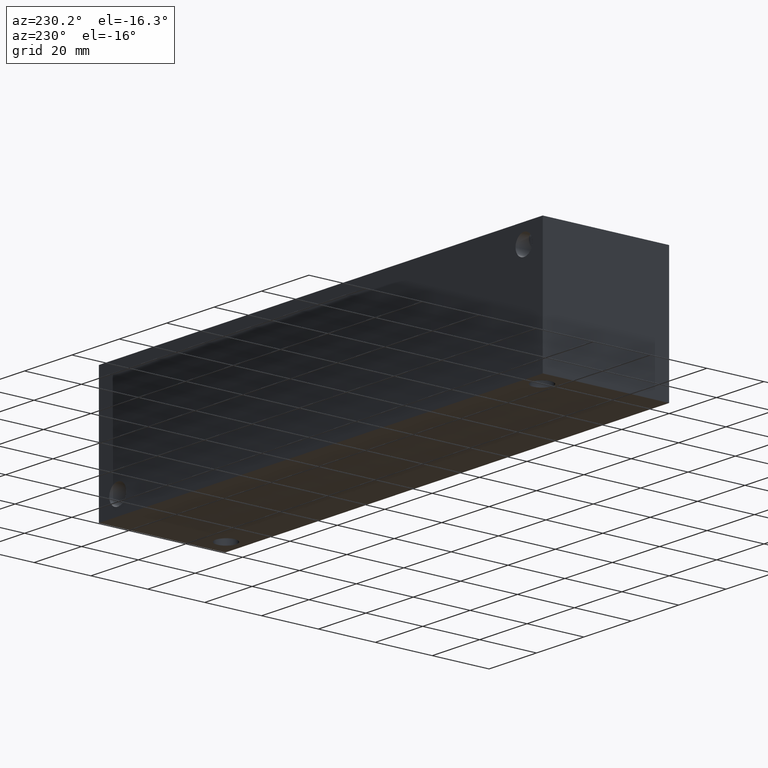
[diagram: clean part render]
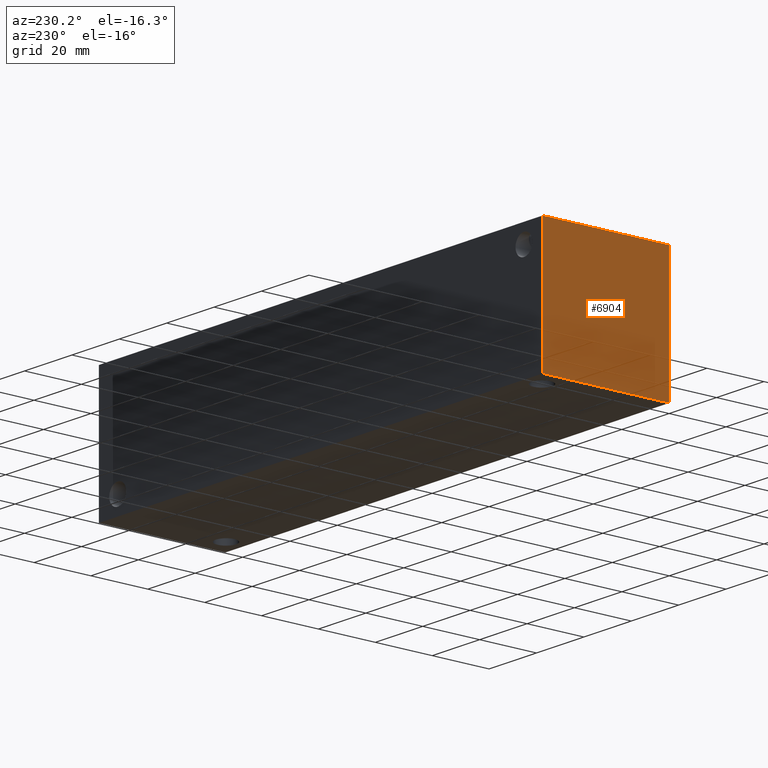
[diagram: same view with one face highlighted and labeled with its STEP entity id]
A machine part, auxiliary view. The second image highlights one B-rep face of the part: STEP entity #6904.
In plain terms, the highlighted planar face has unit normal (-1, 0, 0).
Its self-contained STEP definition (entity closure, byte-faithful):
#400=PLANE('',#7256);
#750=FACE_OUTER_BOUND('',#1144,.T.);
#1144=EDGE_LOOP('',(#6139,#6140,#6141,#6142));
#1432=LINE('',#10547,#2122);
#1842=LINE('',#11688,#2532);
#1843=LINE('',#11689,#2533);
#1844=LINE('',#11690,#2534);
#2122=VECTOR('',#7684,10.);
#2532=VECTOR('',#8612,10.);
#2533=VECTOR('',#8613,10.);
#2534=VECTOR('',#8614,10.);
#3002=VERTEX_POINT('',#10540);
#3005=VERTEX_POINT('',#10545);
#3348=VERTEX_POINT('',#11686);
#3349=VERTEX_POINT('',#11687);
#3784=EDGE_CURVE('',#3005,#3002,#1432,.T.);
#4286=EDGE_CURVE('',#3348,#3349,#1842,.T.);
#4287=EDGE_CURVE('',#3349,#3002,#1843,.T.);
#4288=EDGE_CURVE('',#3348,#3005,#1844,.T.);
#6139=ORIENTED_EDGE('',*,*,#4286,.T.);
#6140=ORIENTED_EDGE('',*,*,#4287,.T.);
#6141=ORIENTED_EDGE('',*,*,#3784,.F.);
#6142=ORIENTED_EDGE('',*,*,#4288,.F.);
#6904=ADVANCED_FACE('',(#750),#400,.T.);
#7256=AXIS2_PLACEMENT_3D('',#11685,#8610,#8611);
#7684=DIRECTION('',(0.,-1.,0.));
#8610=DIRECTION('center_axis',(-1.,0.,0.));
#8611=DIRECTION('ref_axis',(0.,-1.,0.));
#8612=DIRECTION('',(0.,-1.,0.));
#8613=DIRECTION('',(0.,0.,1.));
#8614=DIRECTION('',(0.,0.,1.));
#10540=CARTESIAN_POINT('',(0.,0.,44.45));
#10545=CARTESIAN_POINT('',(0.,44.45,44.45));
#10547=CARTESIAN_POINT('',(0.,44.45,44.45));
#11685=CARTESIAN_POINT('Origin',(0.,44.45,0.));
#11686=CARTESIAN_POINT('',(0.,44.45,0.));
#11687=CARTESIAN_POINT('',(0.,0.,0.));
#11688=CARTESIAN_POINT('',(0.,44.45,0.));
#11689=CARTESIAN_POINT('',(0.,0.,0.));
#11690=CARTESIAN_POINT('',(0.,44.45,0.));